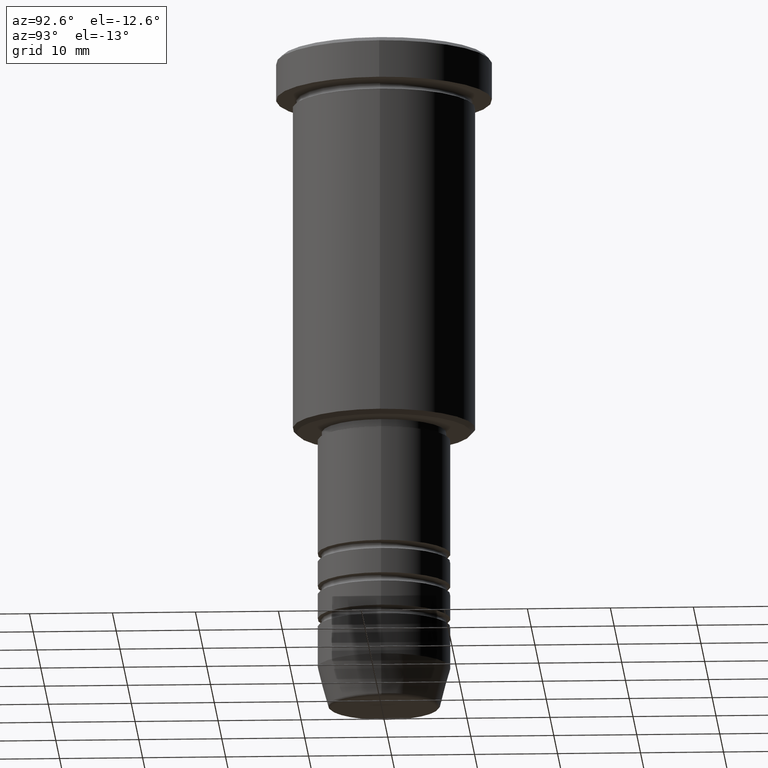
[diagram: clean part render]
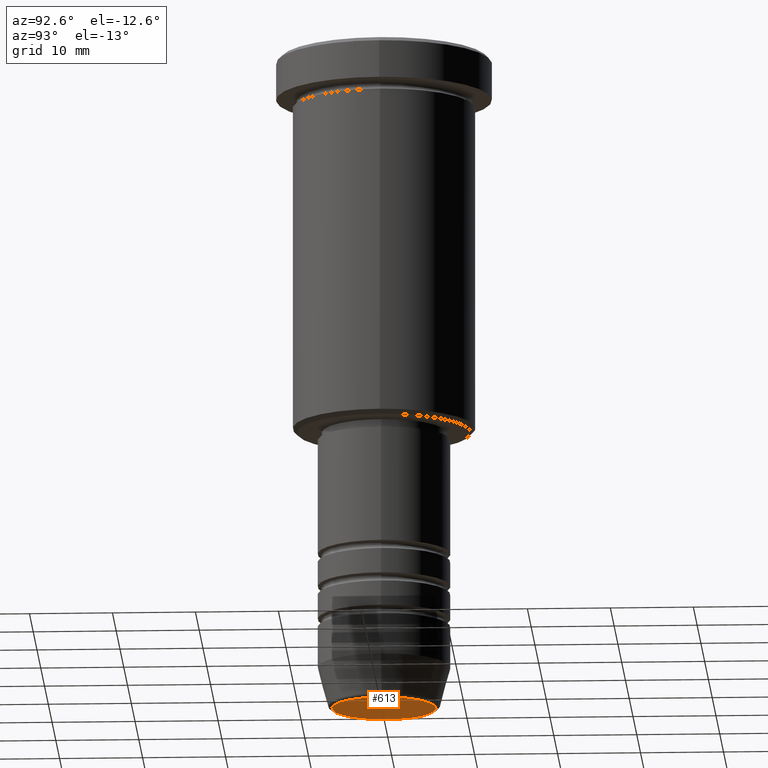
[diagram: same view with one face highlighted and labeled with its STEP entity id]
A machine part, auxiliary view. The second image highlights one B-rep face of the part: STEP entity #613.
In plain terms, the highlighted planar face has unit normal (0, -0, 1).
Its self-contained STEP definition (entity closure, byte-faithful):
#12 = DIRECTION ( 'NONE',  ( 0.000000000000000000, -0.000000000000000000, 1.000000000000000000 ) ) ;
#63 = AXIS2_PLACEMENT_3D ( 'NONE', #726, #363, #77 ) ;
#73 = EDGE_LOOP ( 'NONE', ( #1159, #254 ) ) ;
#77 = DIRECTION ( 'NONE',  ( 1.000000000000000000, 0.000000000000000000, 0.000000000000000000 ) ) ;
#80 = VERTEX_POINT ( 'NONE', #1013 ) ;
#93 = VERTEX_POINT ( 'NONE', #400 ) ;
#100 = CARTESIAN_POINT ( 'NONE',  ( 0.000000000000000000, 0.000000000000000000, -80.00000000000000000 ) ) ;
#118 = DIRECTION ( 'NONE',  ( 1.000000000000000000, 0.000000000000000000, 0.000000000000000000 ) ) ;
#254 = ORIENTED_EDGE ( 'NONE', *, *, #455, .T. ) ;
#278 = DIRECTION ( 'NONE',  ( 1.000000000000000000, 0.000000000000000000, 0.000000000000000000 ) ) ;
#355 = AXIS2_PLACEMENT_3D ( 'NONE', #100, #830, #278 ) ;
#363 = DIRECTION ( 'NONE',  ( 0.000000000000000000, 0.000000000000000000, -1.000000000000000000 ) ) ;
#383 = PLANE ( 'NONE',  #684 ) ;
#400 = CARTESIAN_POINT ( 'NONE',  ( -6.276590543854903892, 7.982336011935120355E-16, -80.00000000000000000 ) ) ;
#426 = CIRCLE ( 'NONE', #63, 6.276590543854903892 ) ;
#455 = EDGE_CURVE ( 'NONE', #93, #80, #426, .T. ) ;
#486 = CIRCLE ( 'NONE', #355, 6.276590543854903892 ) ;
#613 = ADVANCED_FACE ( 'NONE', ( #653 ), #383, .F. ) ;
#653 = FACE_OUTER_BOUND ( 'NONE', #73, .T. ) ;
#674 = CARTESIAN_POINT ( 'NONE',  ( 0.000000000000000000, 0.000000000000000000, -80.00000000000000000 ) ) ;
#684 = AXIS2_PLACEMENT_3D ( 'NONE', #674, #12, #118 ) ;
#726 = CARTESIAN_POINT ( 'NONE',  ( 0.000000000000000000, 0.000000000000000000, -80.00000000000000000 ) ) ;
#830 = DIRECTION ( 'NONE',  ( 0.000000000000000000, 0.000000000000000000, -1.000000000000000000 ) ) ;
#1013 = CARTESIAN_POINT ( 'NONE',  ( 6.276590543854903892, 0.000000000000000000, -80.00000000000000000 ) ) ;
#1036 = EDGE_CURVE ( 'NONE', #80, #93, #486, .T. ) ;
#1159 = ORIENTED_EDGE ( 'NONE', *, *, #1036, .T. ) ;